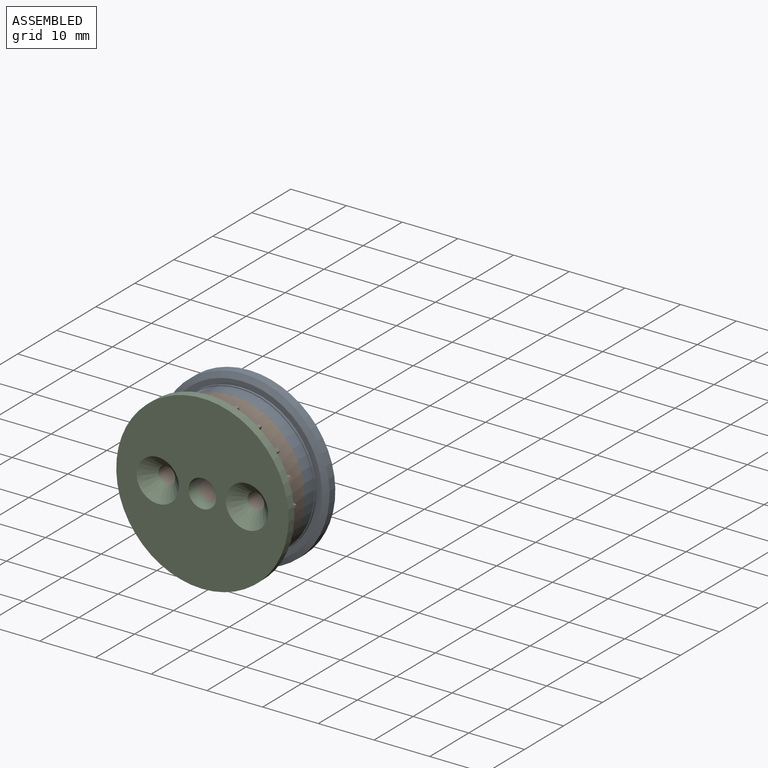
[diagram: assembled view]
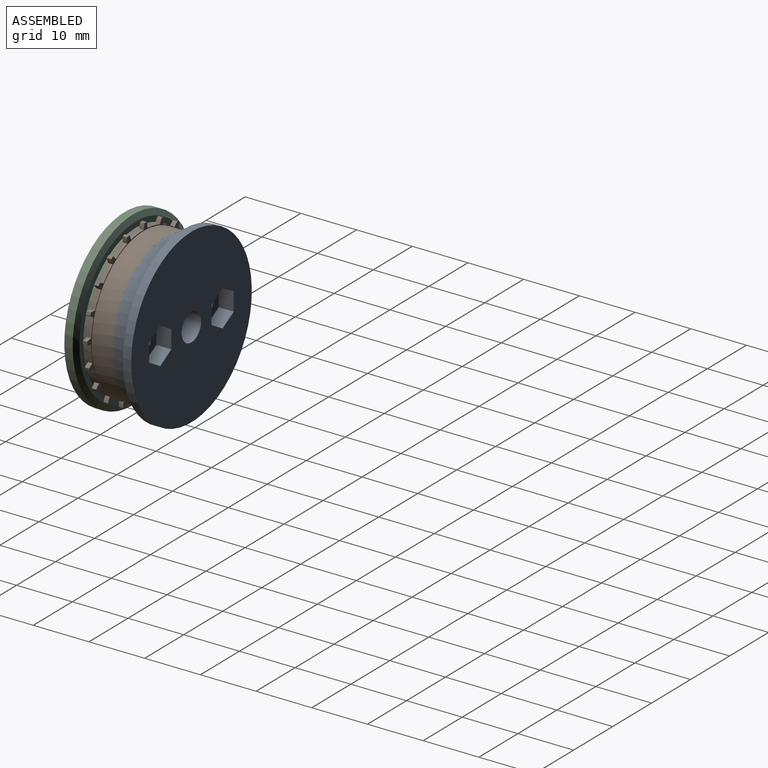
[diagram: assembled view, second angle]
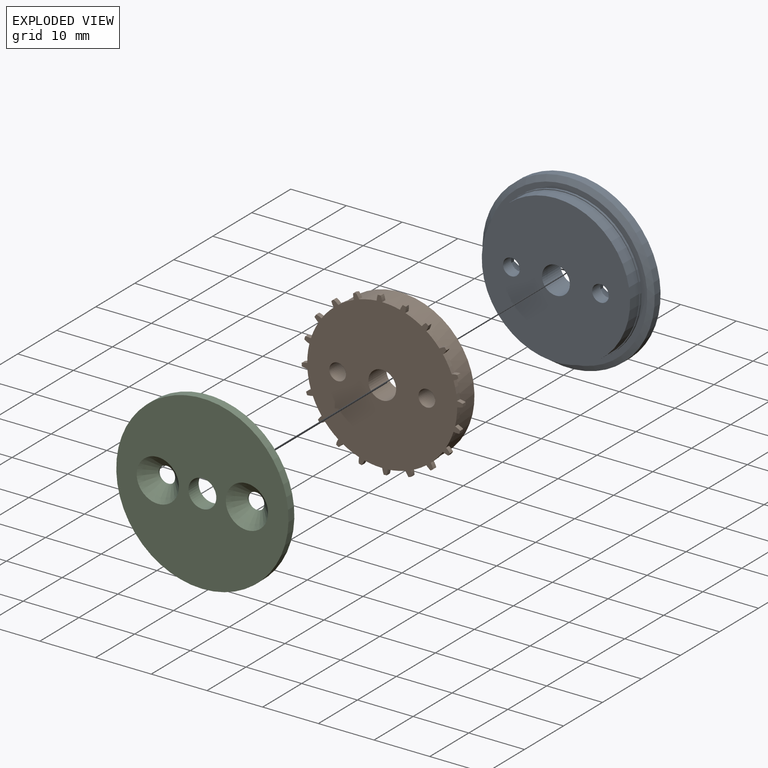
[diagram: exploded view]
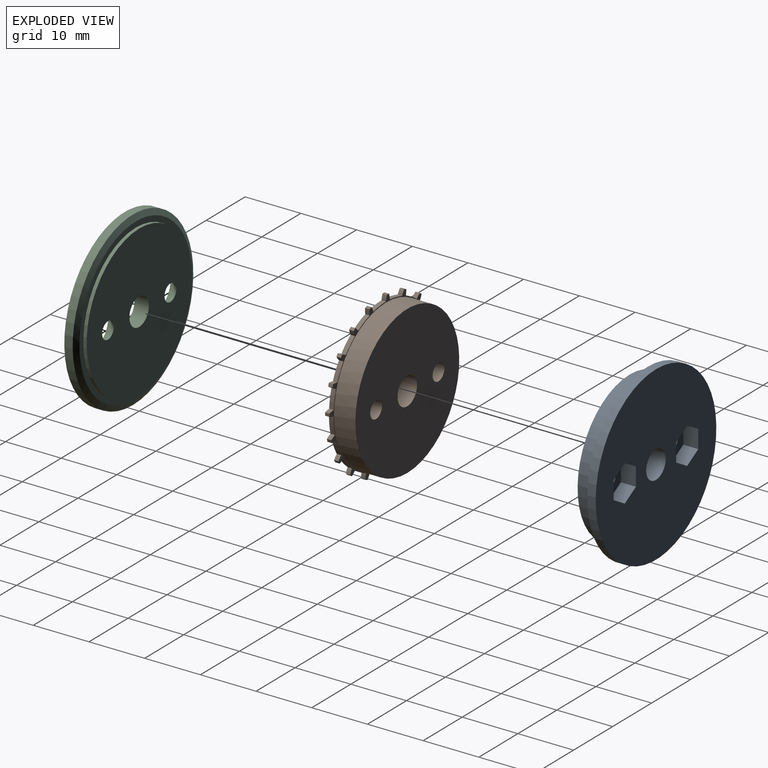
[diagram: exploded view, second angle]
ASSEMBLY  parts=3 mates=2
PART A: 25 faces, bbox 30.9x4.8x30.9 mm
  f0: plane 30.93x30.93mm, normal (0,-1,0), area 675.4mm2, adj f5,f8,f9,f10,f11,f12,f13,f14
  f1: cylinder r=13.31mm len=26.63mm, axis (0,1,0), area 196.6mm2, adj f2,f4
  f2: plane 26.63x26.63mm, normal (0,1,0), area 523.2mm2, adj f1,f8,f23,f24
  f3: cylinder r=13.46mm len=26.93mm, axis (0,1,0), area 33.8mm2, adj f4,f6
  f4: plane 26.93x26.93mm, normal (0,1,0), area 12.6mm2, adj f1,f3
  f5: cylinder r=15.46mm len=30.93mm, axis (0,1,0), area 145.7mm2, adj f0,f7
  f6: plane 28.93x28.93mm, normal (0,1,0), area 87.7mm2, adj f3,f7
  f7: cone r=15.46mm half-angle=63.4deg, axis (0,-1,0), area 105.1mm2, adj f5,f6
  f8: cylinder r=2.5mm len=5mm, axis (0,1,0), area 74.6mm2, adj f0,f2
  f9: plane 3.29x2.7mm, normal (-1,0,0), area 8.9mm2, adj f0,f10,f14,f15
  f10: plane 2.85x2.7mm, normal (-0.5,0,-0.87), area 8.9mm2, adj f0,f9,f11,f15
  f11: plane 2.85x2.7mm, normal (0.5,0,-0.87), area 8.9mm2, adj f0,f10,f12,f15
  f12: plane 3.29x2.7mm, normal (1,0,0), area 8.9mm2, adj f0,f11,f13,f15
  f13: plane 2.85x2.7mm, normal (0.5,0,0.87), area 8.9mm2, adj f0,f12,f14,f15
  f14: plane 2.85x2.7mm, normal (-0.5,0,0.87), area 8.9mm2, adj f0,f9,f13,f15
  f15: plane 6.58x5.7mm, normal (0,-1,0), area 21.1mm2, adj f9,f10,f11,f12,f13,f14,f24
  f16: plane 2.85x2.7mm, normal (0.5,0,-0.87), area 8.9mm2, adj f0,f17,f21,f22
  f17: plane 3.29x2.7mm, normal (1,0,0), area 8.9mm2, adj f0,f16,f18,f22
  f18: plane 2.85x2.7mm, normal (0.5,0,0.87), area 8.9mm2, adj f0,f17,f19,f22
  f19: plane 2.85x2.7mm, normal (-0.5,0,0.87), area 8.9mm2, adj f0,f18,f20,f22
  f20: plane 3.29x2.7mm, normal (-1,0,0), area 8.9mm2, adj f0,f19,f21,f22
  f21: plane 2.85x2.7mm, normal (-0.5,0,-0.87), area 8.9mm2, adj f0,f16,f20,f22
  f22: plane 6.58x5.7mm, normal (0,-1,0), area 21.1mm2, adj f16,f17,f18,f19,f20,f21,f23
  f23: cylinder r=1.5mm len=3mm, axis (0,-1,0), area 19.3mm2, adj f2,f22
  f24: cylinder r=1.5mm len=3mm, axis (0,-1,0), area 19.3mm2, adj f2,f15
PART B: 87 faces, bbox 28.9x4.6x28.9 mm
  f0: cylinder r=3.83mm len=1.03mm, axis (0,1,0), area 0.8mm2, adj f1,f79,f80,f81
  f1: cylinder r=13.46mm len=2.92mm, axis (0,1,0), area 2.6mm2, adj f0,f2,f80,f81
  f2: cylinder r=3.83mm len=0.8mm, axis (0,1,0), area 0.8mm2, adj f1,f3,f80,f81
  f3: cylinder r=14.46mm len=0.8mm, axis (0,1,0), area 0.4mm2, adj f2,f4,f80,f81
  f4: cylinder r=3.83mm len=0.96mm, axis (0,1,0), area 0.8mm2, adj f3,f5,f80,f81
  f5: cylinder r=13.46mm len=2.36mm, axis (0,1,0), area 2.6mm2, adj f4,f6,f80,f81
  f6: cylinder r=3.83mm len=0.93mm, axis (0,1,0), area 0.8mm2, adj f5,f7,f80,f81
  f7: cylinder r=14.46mm len=0.8mm, axis (0,1,0), area 0.4mm2, adj f6,f8,f80,f81
  f8: cylinder r=3.83mm len=0.8mm, axis (0,1,0), area 0.8mm2, adj f7,f9,f80,f81
  f9: cylinder r=13.46mm len=2.81mm, axis (0,1,0), area 2.6mm2, adj f8,f10,f80,f81
  f10: cylinder r=3.83mm len=1.02mm, axis (0,1,0), area 0.8mm2, adj f9,f11,f80,f81
  f11: cylinder r=14.46mm len=0.8mm, axis (0,1,0), area 0.4mm2, adj f10,f12,f80,f81
  f12: cylinder r=3.83mm len=0.87mm, axis (0,1,0), area 0.8mm2, adj f11,f13,f80,f81
  f13: cylinder r=13.46mm len=3.16mm, axis (0,1,0), area 2.6mm2, adj f12,f14,f80,f81
  f14: cylinder r=3.83mm len=1.01mm, axis (0,1,0), area 0.8mm2, adj f13,f15,f80,f81
  f15: cylinder r=14.46mm len=0.8mm, axis (0,1,0), area 0.4mm2, adj f14,f16,f80,f81
  f16: cylinder r=3.83mm len=1mm, axis (0,1,0), area 0.8mm2, adj f15,f17,f80,f81
  f17: cylinder r=13.46mm len=3.2mm, axis (0,1,0), area 2.6mm2, adj f16,f18,f80,f81
  f18: cylinder r=3.83mm len=0.91mm, axis (0,1,0), area 0.8mm2, adj f17,f19,f80,f81
  f19: cylinder r=14.46mm len=0.8mm, axis (0,1,0), area 0.4mm2, adj f18,f20,f80,f81
  f20: cylinder r=3.83mm len=1.03mm, axis (0,1,0), area 0.8mm2, adj f19,f21,f80,f81
  f21: cylinder r=13.46mm len=2.92mm, axis (0,1,0), area 2.6mm2, adj f20,f22,f80,f81
  f22: cylinder r=3.83mm len=0.8mm, axis (0,1,0), area 0.8mm2, adj f21,f23,f80,f81
  f23: cylinder r=14.46mm len=0.8mm, axis (0,1,0), area 0.4mm2, adj f22,f24,f80,f81
  f24: cylinder r=3.83mm len=0.96mm, axis (0,1,0), area 0.8mm2, adj f23,f25,f80,f81
  f25: cylinder r=13.46mm len=2.36mm, axis (0,1,0), area 2.6mm2, adj f24,f26,f80,f81
  f26: cylinder r=3.83mm len=0.93mm, axis (0,1,0), area 0.8mm2, adj f25,f27,f80,f81
  f27: cylinder r=14.46mm len=0.8mm, axis (0,1,0), area 0.4mm2, adj f26,f28,f80,f81
  f28: cylinder r=3.83mm len=0.8mm, axis (0,1,0), area 0.8mm2, adj f27,f29,f80,f81
  f29: cylinder r=13.46mm len=2.81mm, axis (0,1,0), area 2.6mm2, adj f28,f30,f80,f81
  f30: cylinder r=3.83mm len=1.02mm, axis (0,1,0), area 0.8mm2, adj f29,f31,f80,f81
  f31: cylinder r=14.46mm len=0.8mm, axis (0,1,0), area 0.4mm2, adj f30,f32,f80,f81
  f32: cylinder r=3.83mm len=0.87mm, axis (0,1,0), area 0.8mm2, adj f31,f33,f80,f81
  f33: cylinder r=13.46mm len=3.16mm, axis (0,1,0), area 2.6mm2, adj f32,f34,f80,f81
  f34: cylinder r=3.83mm len=1.01mm, axis (0,1,0), area 0.8mm2, adj f33,f35,f80,f81
  f35: cylinder r=14.46mm len=0.8mm, axis (0,1,0), area 0.4mm2, adj f34,f36,f80,f81
  f36: cylinder r=3.83mm len=1mm, axis (0,1,0), area 0.8mm2, adj f35,f37,f80,f81
  f37: cylinder r=13.46mm len=3.2mm, axis (0,1,0), area 2.6mm2, adj f36,f38,f80,f81
  f38: cylinder r=3.83mm len=0.91mm, axis (0,1,0), area 0.8mm2, adj f37,f39,f80,f81
  f39: cylinder r=14.46mm len=0.8mm, axis (0,1,0), area 0.4mm2, adj f38,f40,f80,f81
  f40: cylinder r=3.83mm len=1.03mm, axis (0,1,0), area 0.8mm2, adj f39,f41,f80,f81
  f41: cylinder r=13.46mm len=2.92mm, axis (0,1,0), area 2.6mm2, adj f40,f42,f80,f81
  f42: cylinder r=3.83mm len=0.8mm, axis (0,1,0), area 0.8mm2, adj f41,f43,f80,f81
  f43: cylinder r=14.46mm len=0.8mm, axis (0,1,0), area 0.4mm2, adj f42,f44,f80,f81
  f44: cylinder r=3.83mm len=0.96mm, axis (0,1,0), area 0.8mm2, adj f43,f45,f80,f81
  f45: cylinder r=13.46mm len=2.36mm, axis (0,1,0), area 2.6mm2, adj f44,f46,f80,f81
  f46: cylinder r=3.83mm len=0.93mm, axis (0,1,0), area 0.8mm2, adj f45,f47,f80,f81
  f47: cylinder r=14.46mm len=0.8mm, axis (0,1,0), area 0.4mm2, adj f46,f48,f80,f81
  f48: cylinder r=3.83mm len=0.8mm, axis (0,1,0), area 0.8mm2, adj f47,f49,f80,f81
  f49: cylinder r=13.46mm len=2.81mm, axis (0,1,0), area 2.6mm2, adj f48,f50,f80,f81
  f50: cylinder r=3.83mm len=1.02mm, axis (0,1,0), area 0.8mm2, adj f49,f51,f80,f81
  f51: cylinder r=14.46mm len=0.8mm, axis (0,1,0), area 0.4mm2, adj f50,f52,f80,f81
  f52: cylinder r=3.83mm len=0.87mm, axis (0,1,0), area 0.8mm2, adj f51,f53,f80,f81
  f53: cylinder r=13.46mm len=3.16mm, axis (0,1,0), area 2.6mm2, adj f52,f54,f80,f81
  f54: cylinder r=3.83mm len=1.01mm, axis (0,1,0), area 0.8mm2, adj f53,f55,f80,f81
  f55: cylinder r=14.46mm len=0.8mm, axis (0,1,0), area 0.4mm2, adj f54,f56,f80,f81
  f56: cylinder r=3.83mm len=1mm, axis (0,1,0), area 0.8mm2, adj f55,f57,f80,f81
  f57: cylinder r=13.46mm len=3.2mm, axis (0,1,0), area 2.6mm2, adj f56,f58,f80,f81
  f58: cylinder r=3.83mm len=0.91mm, axis (0,1,0), area 0.8mm2, adj f57,f59,f80,f81
  f59: cylinder r=14.46mm len=0.8mm, axis (0,1,0), area 0.4mm2, adj f58,f60,f80,f81
  f60: cylinder r=3.83mm len=1.03mm, axis (0,1,0), area 0.8mm2, adj f59,f61,f80,f81
  f61: cylinder r=13.46mm len=2.92mm, axis (0,1,0), area 2.6mm2, adj f60,f62,f80,f81
  f62: cylinder r=3.83mm len=0.8mm, axis (0,1,0), area 0.8mm2, adj f61,f63,f80,f81
  f63: cylinder r=14.46mm len=0.8mm, axis (0,1,0), area 0.4mm2, adj f62,f64,f80,f81
  f64: cylinder r=3.83mm len=0.96mm, axis (0,1,0), area 0.8mm2, adj f63,f65,f80,f81
  f65: cylinder r=13.46mm len=2.36mm, axis (0,1,0), area 2.6mm2, adj f64,f66,f80,f81
  f66: cylinder r=3.83mm len=0.93mm, axis (0,1,0), area 0.8mm2, adj f65,f67,f80,f81
  f67: cylinder r=14.46mm len=0.8mm, axis (0,1,0), area 0.4mm2, adj f66,f68,f80,f81
  f68: cylinder r=3.83mm len=0.8mm, axis (0,1,0), area 0.8mm2, adj f67,f69,f80,f81
  f69: cylinder r=13.46mm len=2.81mm, axis (0,1,0), area 2.6mm2, adj f68,f70,f80,f81
  f70: cylinder r=3.83mm len=1.02mm, axis (0,1,0), area 0.8mm2, adj f69,f71,f80,f81
  f71: cylinder r=14.46mm len=0.8mm, axis (0,1,0), area 0.4mm2, adj f70,f72,f80,f81
  f72: cylinder r=3.83mm len=0.87mm, axis (0,1,0), area 0.8mm2, adj f71,f73,f80,f81
  f73: cylinder r=13.46mm len=3.16mm, axis (0,1,0), area 2.6mm2, adj f72,f74,f80,f81
  f74: cylinder r=3.83mm len=1.01mm, axis (0,1,0), area 0.8mm2, adj f73,f75,f80,f81
  f75: cylinder r=14.46mm len=0.8mm, axis (0,1,0), area 0.4mm2, adj f74,f76,f80,f81
  f76: cylinder r=3.83mm len=1mm, axis (0,1,0), area 0.8mm2, adj f75,f77,f80,f81
  f77: cylinder r=13.46mm len=3.2mm, axis (0,1,0), area 2.6mm2, adj f76,f78,f80,f81
  f78: cylinder r=3.83mm len=0.91mm, axis (0,1,0), area 0.8mm2, adj f77,f79,f80,f81
  f79: cylinder r=14.46mm len=0.8mm, axis (0,1,0), area 0.4mm2, adj f0,f78,f80,f81
  f80: plane 28.92x28.92mm, normal (0,-1,0), area 29.1mm2, adj f0,f1,f2,f3,f4,f5,f6,f7
  f81: plane 28.92x28.92mm, normal (0,1,0), area 552.2mm2, adj f0,f1,f2,f3,f4,f5,f6,f7
  f82: cylinder r=13.31mm len=26.63mm, axis (0,1,0), area 321.2mm2, adj f80,f83
  f83: plane 26.63x26.63mm, normal (0,-1,0), area 523.2mm2, adj f82,f84,f85,f86
  f84: cylinder r=2.5mm len=5mm, axis (0,1,0), area 72.9mm2, adj f81,f83
  f85: cylinder r=1.5mm len=4.64mm, axis (0,1,0), area 43.7mm2, adj f81,f83
  f86: cylinder r=1.5mm len=4.64mm, axis (0,1,0), area 43.7mm2, adj f81,f83
PART C: 11 faces, bbox 30.9x2.6x30.9 mm
  f0: cylinder r=13.46mm len=26.93mm, axis (0,1,0), area 51.6mm2, adj f1,f4
  f1: plane 26.93x26.93mm, normal (0,1,0), area 535.8mm2, adj f0,f6,f7,f9
  f2: cylinder r=15.46mm len=30.93mm, axis (0,1,0), area 145.7mm2, adj f3,f5
  f3: plane 30.93x30.93mm, normal (0,-1,0), area 641mm2, adj f2,f6,f8,f10
  f4: plane 28.93x28.93mm, normal (0,1,0), area 87.7mm2, adj f0,f5
  f5: cone r=15.46mm half-angle=63.4deg, axis (0,-1,0), area 105.1mm2, adj f2,f4
  f6: cylinder r=2.5mm len=5mm, axis (0,-1,0), area 41mm2, adj f1,f3
  f7: cylinder r=1.5mm len=3mm, axis (0,-1,0), area 2.9mm2, adj f1,f8
  f8: cone r=1.5mm half-angle=45deg, axis (0,-1,0), area 54.2mm2, adj f3,f7
  f9: cylinder r=1.5mm len=3mm, axis (0,-1,0), area 2.9mm2, adj f1,f10
  f10: cone r=1.5mm half-angle=45deg, axis (0,-1,0), area 54.2mm2, adj f3,f9
PLACE A rot(axis=(1,0,0),180deg) t=(0,4.64,0)mm
PLACE B rot(axis=(1,0,0),180deg) t=(0,0,0)mm
PLACE C at identity fixed
MATE fastened A.f1 <-> B.f82  axis (0,-1,0) through (0,4.64,0)mm
MATE fastened B.f1 <-> C.f0  axis (0,-1,0) through (0,0,0)mm
